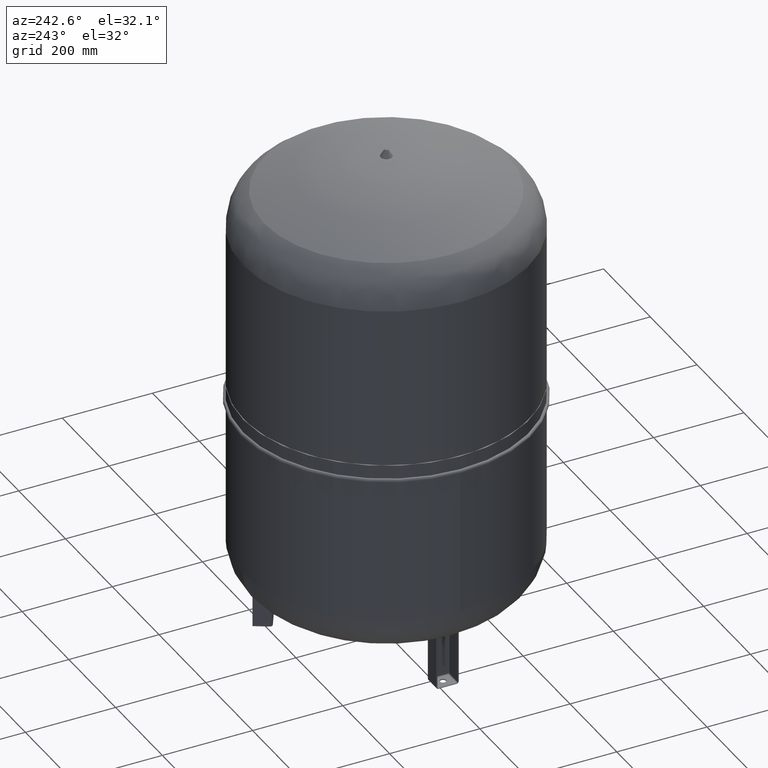
[diagram: clean part render]
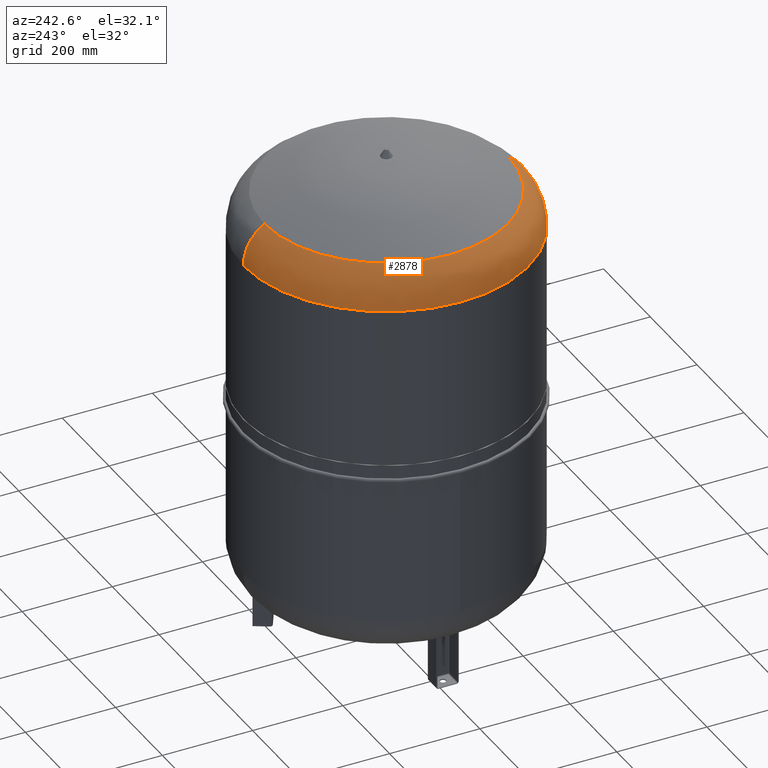
[diagram: same view with one face highlighted and labeled with its STEP entity id]
A machine part, auxiliary view. The second image highlights one B-rep face of the part: STEP entity #2878.
In plain terms, the highlighted face is a freeform B-spline surface patch.
Its self-contained STEP definition (entity closure, byte-faithful):
#2639=CARTESIAN_POINT('',(-317.000000000000060,-2.971473E-014,923.240550627371480));
#2640=VERTEX_POINT('',#2639);
#2664=CARTESIAN_POINT('',(9.762260E-031,-317.000000000000110,923.240550627371590));
#2665=VERTEX_POINT('',#2664);
#2673=CARTESIAN_POINT('',(-1.556097E-014,-2.971473E-014,923.240550627371360));
#2674=DIRECTION('',(0.0,0.0,1.0));
#2675=DIRECTION('',(-1.0,0.0,0.0));
#2676=AXIS2_PLACEMENT_3D('',#2673,#2674,#2675);
#2677=CIRCLE('',#2676,317.000000000000060);
#2678=EDGE_CURVE('',#2640,#2665,#2677,.T.);
#2736=CARTESIAN_POINT('',(8.065826E-015,-270.639024390243830,1007.086439681297500));
#2737=VERTEX_POINT('',#2736);
#2738=CARTESIAN_POINT('',(0.0,-218.000000000000030,923.240550627371480));
#2739=DIRECTION('',(-1.0,0.0,0.0));
#2740=DIRECTION('',(0.0,-1.0,0.0));
#2741=AXIS2_PLACEMENT_3D('',#2738,#2739,#2740);
#2742=CIRCLE('',#2741,99.0);
#2743=EDGE_CURVE('',#2665,#2737,#2742,.T.);
#2746=CARTESIAN_POINT('',(-3.882002E-014,317.0,923.240550627371140));
#2747=VERTEX_POINT('',#2746);
#2755=CARTESIAN_POINT('',(-2.507680E-014,270.639024390243830,1007.086439681297500));
#2756=VERTEX_POINT('',#2755);
#2757=CARTESIAN_POINT('',(-2.669642E-014,217.999999999999970,923.240550627371250));
#2758=DIRECTION('',(1.0,0.0,0.0));
#2759=DIRECTION('',(0.0,1.0,0.0));
#2760=AXIS2_PLACEMENT_3D('',#2757,#2758,#2759);
#2761=CIRCLE('',#2760,99.0);
#2762=EDGE_CURVE('',#2747,#2756,#2761,.T.);
#2791=CARTESIAN_POINT('',(-270.639024390243830,-1.431249E-014,1007.086439681297600));
#2792=VERTEX_POINT('',#2791);
#2793=CARTESIAN_POINT('',(-7.495146E-015,-1.431249E-014,1007.086439681297500));
#2794=DIRECTION('',(0.0,0.0,1.0));
#2795=DIRECTION('',(-1.0,0.0,0.0));
#2796=AXIS2_PLACEMENT_3D('',#2793,#2794,#2795);
#2797=CIRCLE('',#2796,270.639024390243830);
#2798=EDGE_CURVE('',#2792,#2737,#2797,.T.);
#2801=CARTESIAN_POINT('',(-7.495146E-015,-1.431249E-014,1007.086439681297500));
#2802=DIRECTION('',(0.0,0.0,1.0));
#2803=DIRECTION('',(-1.0,0.0,0.0));
#2804=AXIS2_PLACEMENT_3D('',#2801,#2802,#2803);
#2805=CIRCLE('',#2804,270.639024390243830);
#2806=EDGE_CURVE('',#2756,#2792,#2805,.T.);
#2811=CARTESIAN_POINT('',(-1.457282E-014,119.0,923.240550627370910));
#2812=CARTESIAN_POINT('',(-5.049191E-015,118.999999999999720,1022.240550627371200));
#2813=CARTESIAN_POINT('',(-1.717279E-014,217.999999999999970,1022.240550627371200));
#2814=CARTESIAN_POINT('',(-2.929640E-014,317.000000000000230,1022.240550627371200));
#2815=CARTESIAN_POINT('',(-3.882002E-014,316.999999999999940,923.240550627370910));
#2816=CARTESIAN_POINT('',(-119.000000000000010,118.999999999999940,923.240550627371020));
#2817=CARTESIAN_POINT('',(-118.999999999999690,118.999999999999660,1022.240550627371200));
#2818=CARTESIAN_POINT('',(-217.999999999999940,217.999999999999890,1022.240550627371200));
#2819=CARTESIAN_POINT('',(-317.000000000000230,317.000000000000110,1022.240550627371200));
#2820=CARTESIAN_POINT('',(-317.0,316.999999999999890,923.240550627371020));
#2821=CARTESIAN_POINT('',(-119.000000000000030,-4.428754E-014,923.240550627370910));
#2822=CARTESIAN_POINT('',(-118.999999999999720,-2.610154E-014,1022.240550627371200));
#2823=CARTESIAN_POINT('',(-217.999999999999970,-3.822514E-014,1022.240550627371200));
#2824=CARTESIAN_POINT('',(-317.000000000000230,-5.034875E-014,1022.240550627371200));
#2825=CARTESIAN_POINT('',(-317.0,-6.853475E-014,923.240550627371020));
#2826=CARTESIAN_POINT('',(-118.999999999999990,-119.000000000000040,923.240550627371020));
#2827=CARTESIAN_POINT('',(-118.999999999999660,-118.999999999999720,1022.240550627371200));
#2828=CARTESIAN_POINT('',(-217.999999999999890,-217.999999999999940,1022.240550627371200));
#2829=CARTESIAN_POINT('',(-317.000000000000110,-317.000000000000230,1022.240550627371200));
#2830=CARTESIAN_POINT('',(-316.999999999999890,-317.0,923.240550627371140));
#2831=CARTESIAN_POINT('',(1.457282E-014,-119.000000000000060,923.240550627370910));
#2832=CARTESIAN_POINT('',(2.409644E-014,-118.999999999999730,1022.240550627371200));
#2833=CARTESIAN_POINT('',(3.622004E-014,-217.999999999999970,1022.240550627371200));
#2834=CARTESIAN_POINT('',(4.834365E-014,-317.000000000000230,1022.240550627371200));
#2835=CARTESIAN_POINT('',(3.882002E-014,-317.000000000000060,923.240550627371140));
#2836=CARTESIAN_POINT('',(119.000000000000010,-119.000000000000010,923.240550627371020));
#2837=CARTESIAN_POINT('',(118.999999999999720,-118.999999999999690,1022.240550627371200));
#2838=CARTESIAN_POINT('',(217.999999999999940,-217.999999999999890,1022.240550627371200));
#2839=CARTESIAN_POINT('',(317.000000000000230,-317.000000000000170,1022.240550627371200));
#2840=CARTESIAN_POINT('',(317.0,-316.999999999999940,923.240550627371140));
#2841=CARTESIAN_POINT('',(119.000000000000030,-1.514191E-014,923.240550627370910));
#2842=CARTESIAN_POINT('',(118.999999999999730,3.044092E-015,1022.240550627371200));
#2843=CARTESIAN_POINT('',(217.999999999999970,1.516769E-014,1022.240550627371200));
#2844=CARTESIAN_POINT('',(317.000000000000230,2.729130E-014,1022.240550627371200));
#2845=CARTESIAN_POINT('',(317.0,9.105293E-015,923.240550627371020));
#2846=CARTESIAN_POINT('',(118.999999999999990,118.999999999999990,923.240550627371020));
#2847=CARTESIAN_POINT('',(118.999999999999690,118.999999999999690,1022.240550627371200));
#2848=CARTESIAN_POINT('',(217.999999999999890,217.999999999999940,1022.240550627371200));
#2849=CARTESIAN_POINT('',(317.000000000000110,317.000000000000170,1022.240550627371200));
#2850=CARTESIAN_POINT('',(316.999999999999890,316.999999999999940,923.240550627371020));
#2851=CARTESIAN_POINT('',(-1.457282E-014,119.0,923.240550627370910));
#2852=CARTESIAN_POINT('',(-5.049191E-015,118.999999999999720,1022.240550627371200));
#2853=CARTESIAN_POINT('',(-1.717279E-014,217.999999999999970,1022.240550627371200));
#2854=CARTESIAN_POINT('',(-2.929640E-014,317.000000000000230,1022.240550627371200));
#2855=CARTESIAN_POINT('',(-3.882002E-014,316.999999999999940,923.240550627370910));
#2863=(BOUNDED_SURFACE()B_SPLINE_SURFACE(2,2,((#2811,#2816,#2821,#2826,#2831,#2836,#2841,#2846,#2851),(#2812,#2817,#2822,#2827,#2832,#2837,#2842,#2847,#2852),(#2813,#2818,#2823,#2828,#2833,#2838,#2843,#2848,#2853),(#2814,#2819,#2824,#2829,#2834,#2839,#2844,#2849,#2854),(#2815,#2820,#2825,#2830,#2835,#2840,#2845,#2850,#2855)),.UNSPECIFIED.,.F.,.T.,.U.)B_SPLINE_SURFACE_WITH_KNOTS((3,2,3),(3,2,2,2,3),(-3.141592653589796,-1.570796326794897,3.192934E-015),(0.0,1.570796326794897,3.141592653589793,4.712388980384690,6.283185307179586),.UNSPECIFIED.)GEOMETRIC_REPRESENTATION_ITEM()RATIONAL_B_SPLINE_SURFACE(((1.0,0.707106781186548,1.0,0.707106781186548,1.0,0.707106781186548,1.0,0.707106781186548,1.0),(0.707106781186546,0.499999999999999,0.707106781186546,0.499999999999999,0.707106781186546,0.499999999999999,0.707106781186546,0.499999999999999,0.707106781186546),(1.0,0.707106781186548,1.0,0.707106781186548,1.0,0.707106781186548,1.0,0.707106781186548,1.0),(0.707106781186547,0.499999999999999,0.707106781186547,0.499999999999999,0.707106781186547,0.499999999999999,0.707106781186547,0.499999999999999,0.707106781186547),(1.0,0.707106781186548,1.0,0.707106781186548,1.0,0.707106781186548,1.0,0.707106781186548,1.0)))REPRESENTATION_ITEM('')SURFACE());
#2864=ORIENTED_EDGE('',*,*,#2743,.T.);
#2865=ORIENTED_EDGE('',*,*,#2798,.F.);
#2866=ORIENTED_EDGE('',*,*,#2806,.F.);
#2867=ORIENTED_EDGE('',*,*,#2762,.F.);
#2868=CARTESIAN_POINT('',(-1.556097E-014,-2.971473E-014,923.240550627371360));
#2869=DIRECTION('',(0.0,0.0,1.0));
#2870=DIRECTION('',(-1.0,0.0,0.0));
#2871=AXIS2_PLACEMENT_3D('',#2868,#2869,#2870);
#2872=CIRCLE('',#2871,317.000000000000060);
#2873=EDGE_CURVE('',#2747,#2640,#2872,.T.);
#2874=ORIENTED_EDGE('',*,*,#2873,.T.);
#2875=ORIENTED_EDGE('',*,*,#2678,.T.);
#2876=EDGE_LOOP('',(#2864,#2865,#2866,#2867,#2874,#2875));
#2877=FACE_OUTER_BOUND('',#2876,.T.);
#2878=ADVANCED_FACE('',(#2877),#2863,.T.);